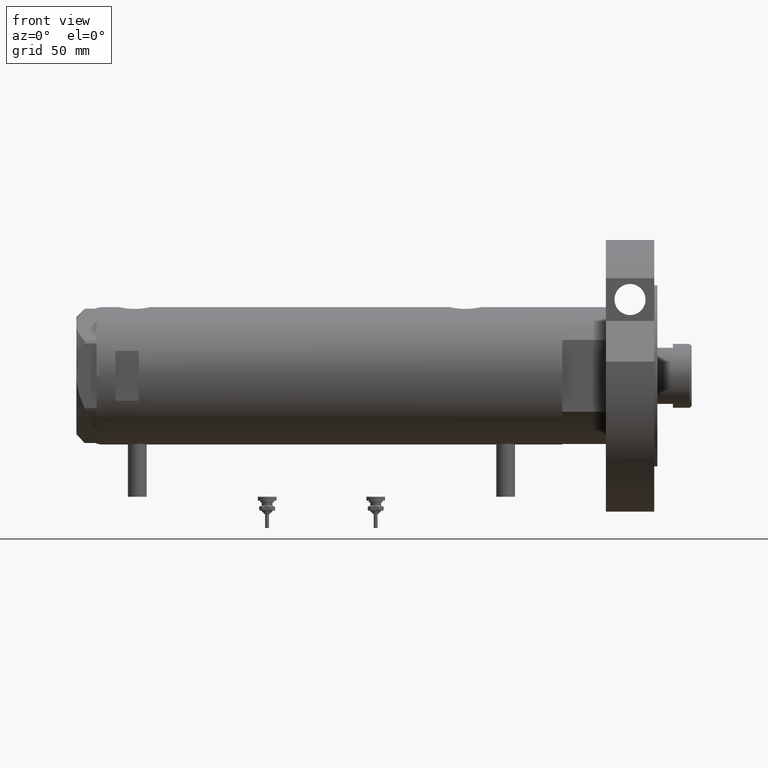
[diagram: clean part render]
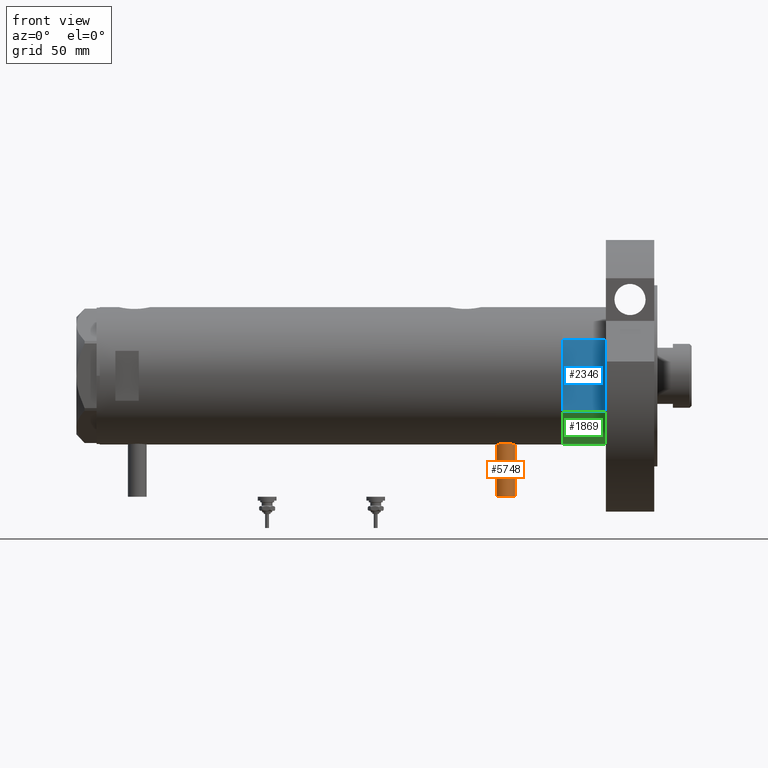
[diagram: same view with three faces highlighted in distinct colors, each labeled with its STEP entity id]
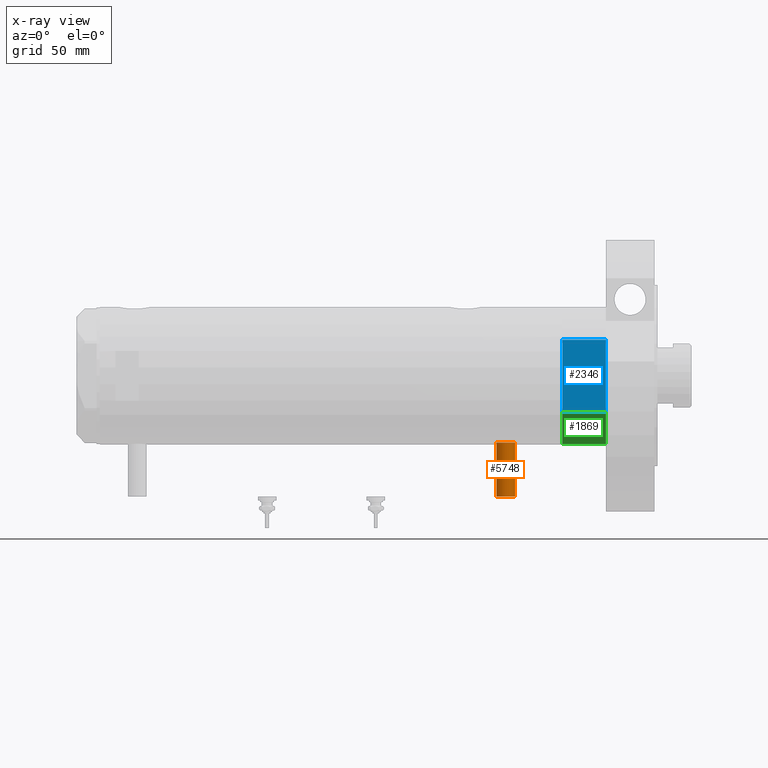
[diagram: x-ray of the same camera — body ghosted, the three highlighted faces saturated]
A machine part, front view with three faces highlighted in distinct colors.
The next image is the same camera in x-ray (body ghosted, the three faces saturated) — at least one of them is partly hidden behind the body in this view.
Their STEP definitions:

[orange] entity #5748 — the highlighted cylindrical surface (edge-blend (fillet) strip) has radius 6 mm, axis along (0, 0, 1).
#614 = DIRECTION ( 'NONE',  ( 1.000000000000000000, -0.000000000000000000, -0.000000000000000000 ) ) ;
#811 = CARTESIAN_POINT ( 'NONE',  ( -42.79999999999999716, 7.347880794884119736E-16, -105.8999999999999915 ) ) ;
#967 = CIRCLE ( 'NONE', #2430, 6.000000000000005329 ) ;
#1278 = DIRECTION ( 'NONE',  ( -1.000000000000000000, 0.000000000000000000, 0.000000000000000000 ) ) ;
#1591 = DIRECTION ( 'NONE',  ( 1.000000000000000000, -0.000000000000000000, -0.000000000000000000 ) ) ;
#1645 = VERTEX_POINT ( 'NONE', #811 ) ;
#2273 = DIRECTION ( 'NONE',  ( 0.000000000000000000, 0.000000000000000000, 1.000000000000000000 ) ) ;
#2309 = AXIS2_PLACEMENT_3D ( 'NONE', #3878, #1591, #7434 ) ;
#2351 = VERTEX_POINT ( 'NONE', #2934 ) ;
#2381 = CARTESIAN_POINT ( 'NONE',  ( -77.50000000000000000, 0.000000000000000000, -117.9000000000000057 ) ) ;
#2430 = AXIS2_PLACEMENT_3D ( 'NONE', #5751, #2858, #2273 ) ;
#2433 = EDGE_CURVE ( 'NONE', #6926, #2351, #7275, .T. ) ;
#2572 = VERTEX_POINT ( 'NONE', #3226 ) ;
#2858 = DIRECTION ( 'NONE',  ( -1.000000000000000000, 0.000000000000000000, 0.000000000000000000 ) ) ;
#2934 = CARTESIAN_POINT ( 'NONE',  ( -77.50000000000000000, 7.347880794884119736E-16, -105.8999999999999915 ) ) ;
#3162 = ORIENTED_EDGE ( 'NONE', *, *, #2433, .F. ) ;
#3226 = CARTESIAN_POINT ( 'NONE',  ( -42.79999999999999716, 0.000000000000000000, -117.9000000000000057 ) ) ;
#3684 = DIRECTION ( 'NONE',  ( 0.000000000000000000, 0.000000000000000000, 1.000000000000000000 ) ) ;
#3878 = CARTESIAN_POINT ( 'NONE',  ( -77.50000000000000000, 0.000000000000000000, -111.9000000000000057 ) ) ;
#4015 = VECTOR ( 'NONE', #614, 1000.000000000000000 ) ;
#4113 = LINE ( 'NONE', #4183, #4015 ) ;
#4183 = CARTESIAN_POINT ( 'NONE',  ( -77.50000000000000000, 7.347880794884122694E-16, -105.8999999999999915 ) ) ;
#4211 = ORIENTED_EDGE ( 'NONE', *, *, #5925, .T. ) ;
#4215 = AXIS2_PLACEMENT_3D ( 'NONE', #4216, #1278, #3684 ) ;
#4216 = CARTESIAN_POINT ( 'NONE',  ( -77.50000000000000000, 0.000000000000000000, -111.9000000000000057 ) ) ;
#4585 = CYLINDRICAL_SURFACE ( 'NONE', #2309, 6.000000000000005329 ) ;
#4618 = LINE ( 'NONE', #5345, #5218 ) ;
#4637 = ORIENTED_EDGE ( 'NONE', *, *, #5360, .T. ) ;
#5007 = EDGE_CURVE ( 'NONE', #2351, #1645, #4113, .T. ) ;
#5218 = VECTOR ( 'NONE', #6959, 1000.000000000000000 ) ;
#5345 = CARTESIAN_POINT ( 'NONE',  ( -77.50000000000000000, 0.000000000000000000, -117.9000000000000057 ) ) ;
#5360 = EDGE_CURVE ( 'NONE', #2572, #1645, #967, .T. ) ;
#5580 = FACE_OUTER_BOUND ( 'NONE', #7229, .T. ) ;
#5748 = ADVANCED_FACE ( 'NONE', ( #5580 ), #4585, .T. ) ;
#5751 = CARTESIAN_POINT ( 'NONE',  ( -42.79999999999999716, 0.000000000000000000, -111.9000000000000057 ) ) ;
#5925 = EDGE_CURVE ( 'NONE', #6926, #2572, #4618, .T. ) ;
#6926 = VERTEX_POINT ( 'NONE', #2381 ) ;
#6959 = DIRECTION ( 'NONE',  ( 1.000000000000000000, -0.000000000000000000, -0.000000000000000000 ) ) ;
#7229 = EDGE_LOOP ( 'NONE', ( #7288, #3162, #4211, #4637 ) ) ;
#7275 = CIRCLE ( 'NONE', #4215, 6.000000000000005329 ) ;
#7288 = ORIENTED_EDGE ( 'NONE', *, *, #5007, .F. ) ;
#7434 = DIRECTION ( 'NONE',  ( 0.000000000000000000, 0.000000000000000000, -1.000000000000000000 ) ) ;

[blue] entity #2346 — the highlighted planar face has unit normal (-0, 1, 0).
#62 = EDGE_CURVE ( 'NONE', #3295, #6805, #1348, .T. ) ;
#123 = VECTOR ( 'NONE', #7312, 1000.000000000000000 ) ;
#323 = ORIENTED_EDGE ( 'NONE', *, *, #62, .F. ) ;
#334 = ORIENTED_EDGE ( 'NONE', *, *, #6031, .F. ) ;
#490 = CARTESIAN_POINT ( 'NONE',  ( -23.01629857296780557, -37.50000000000000000, 0.000000000000000000 ) ) ;
#525 = VERTEX_POINT ( 'NONE', #2493 ) ;
#537 = CARTESIAN_POINT ( 'NONE',  ( 0.000000000000000000, -37.50000000000000000, 27.89999999999999858 ) ) ;
#674 = DIRECTION ( 'NONE',  ( -1.000000000000000000, -0.000000000000000000, -0.000000000000000000 ) ) ;
#1072 = ORIENTED_EDGE ( 'NONE', *, *, #2198, .T. ) ;
#1075 = DIRECTION ( 'NONE',  ( -0.000000000000000000, -0.000000000000000000, 1.000000000000000000 ) ) ;
#1162 = PLANE ( 'NONE',  #6293 ) ;
#1190 = LINE ( 'NONE', #5808, #5553 ) ;
#1348 = LINE ( 'NONE', #6466, #6639 ) ;
#1393 = LINE ( 'NONE', #2702, #2535 ) ;
#1444 = DIRECTION ( 'NONE',  ( -1.000000000000000000, -0.000000000000000000, -0.000000000000000000 ) ) ;
#1535 = EDGE_CURVE ( 'NONE', #525, #6789, #6908, .T. ) ;
#1552 = EDGE_CURVE ( 'NONE', #6789, #4835, #6948, .T. ) ;
#1553 = CARTESIAN_POINT ( 'NONE',  ( 23.01629857296780557, -37.50000000000000000, 27.89999999999999858 ) ) ;
#2163 = DIRECTION ( 'NONE',  ( -0.000000000000000000, -0.000000000000000000, 1.000000000000000000 ) ) ;
#2198 = EDGE_CURVE ( 'NONE', #4835, #5277, #4931, .T. ) ;
#2346 = ADVANCED_FACE ( 'NONE', ( #6966 ), #1162, .F. ) ;
#2487 = LINE ( 'NONE', #6119, #123 ) ;
#2493 = CARTESIAN_POINT ( 'NONE',  ( 23.01629857296780557, -37.50000000000000000, 0.000000000000000000 ) ) ;
#2535 = VECTOR ( 'NONE', #2163, 1000.000000000000000 ) ;
#2702 = CARTESIAN_POINT ( 'NONE',  ( -23.01629857296780557, -37.50000000000000000, 0.000000000000000000 ) ) ;
#3223 = EDGE_CURVE ( 'NONE', #6805, #6436, #1190, .T. ) ;
#3248 = ORIENTED_EDGE ( 'NONE', *, *, #1552, .T. ) ;
#3295 = VERTEX_POINT ( 'NONE', #5268 ) ;
#3514 = CARTESIAN_POINT ( 'NONE',  ( -23.01629857296780557, -37.50000000000000000, 27.89999999999999858 ) ) ;
#3766 = ORIENTED_EDGE ( 'NONE', *, *, #1535, .T. ) ;
#3930 = EDGE_CURVE ( 'NONE', #6436, #5277, #1393, .T. ) ;
#4552 = DIRECTION ( 'NONE',  ( -0.000000000000000000, 1.000000000000000000, 0.000000000000000000 ) ) ;
#4594 = DIRECTION ( 'NONE',  ( 0.000000000000000000, -0.000000000000000000, 1.000000000000000000 ) ) ;
#4613 = DIRECTION ( 'NONE',  ( -1.000000000000000000, -0.000000000000000000, -0.000000000000000000 ) ) ;
#4754 = CARTESIAN_POINT ( 'NONE',  ( -23.01629857296780557, -37.50000000000000000, 0.000000000000000000 ) ) ;
#4835 = VERTEX_POINT ( 'NONE', #537 ) ;
#4931 = LINE ( 'NONE', #6775, #6166 ) ;
#5268 = CARTESIAN_POINT ( 'NONE',  ( 13.91941090707505957, -37.50000000000000000, 0.000000000000000000 ) ) ;
#5277 = VERTEX_POINT ( 'NONE', #7327 ) ;
#5553 = VECTOR ( 'NONE', #4613, 1000.000000000000000 ) ;
#5808 = CARTESIAN_POINT ( 'NONE',  ( -23.01629857296780557, -37.50000000000000000, 0.000000000000000000 ) ) ;
#5921 = VECTOR ( 'NONE', #7529, 1000.000000000000000 ) ;
#6031 = EDGE_CURVE ( 'NONE', #525, #3295, #2487, .T. ) ;
#6119 = CARTESIAN_POINT ( 'NONE',  ( -23.01629857296780557, -37.50000000000000000, 0.000000000000000000 ) ) ;
#6166 = VECTOR ( 'NONE', #1444, 1000.000000000000000 ) ;
#6244 = CARTESIAN_POINT ( 'NONE',  ( -13.91941090707505957, -37.50000000000000000, 0.000000000000000000 ) ) ;
#6293 = AXIS2_PLACEMENT_3D ( 'NONE', #490, #4552, #4594 ) ;
#6412 = CARTESIAN_POINT ( 'NONE',  ( 23.01629857296780557, -37.50000000000000000, 0.000000000000000000 ) ) ;
#6436 = VERTEX_POINT ( 'NONE', #4754 ) ;
#6466 = CARTESIAN_POINT ( 'NONE',  ( -23.01629857296780557, -37.50000000000000000, 0.000000000000000000 ) ) ;
#6639 = VECTOR ( 'NONE', #674, 1000.000000000000000 ) ;
#6775 = CARTESIAN_POINT ( 'NONE',  ( -23.01629857296780557, -37.50000000000000000, 27.89999999999999858 ) ) ;
#6789 = VERTEX_POINT ( 'NONE', #1553 ) ;
#6805 = VERTEX_POINT ( 'NONE', #6244 ) ;
#6880 = VECTOR ( 'NONE', #1075, 1000.000000000000000 ) ;
#6890 = ORIENTED_EDGE ( 'NONE', *, *, #3223, .F. ) ;
#6908 = LINE ( 'NONE', #6412, #6880 ) ;
#6948 = LINE ( 'NONE', #3514, #5921 ) ;
#6966 = FACE_OUTER_BOUND ( 'NONE', #7525, .T. ) ;
#7312 = DIRECTION ( 'NONE',  ( -1.000000000000000000, -0.000000000000000000, -0.000000000000000000 ) ) ;
#7327 = CARTESIAN_POINT ( 'NONE',  ( -23.01629857296780557, -37.50000000000000000, 27.89999999999999858 ) ) ;
#7472 = ORIENTED_EDGE ( 'NONE', *, *, #3930, .F. ) ;
#7525 = EDGE_LOOP ( 'NONE', ( #3248, #1072, #7472, #6890, #323, #334, #3766 ) ) ;
#7529 = DIRECTION ( 'NONE',  ( -1.000000000000000000, -0.000000000000000000, -0.000000000000000000 ) ) ;

[green] entity #1869 — the highlighted cylindrical surface (partial cylindrical patch) has radius 44 mm, axis along (-1, -0, 0).
#191 = AXIS2_PLACEMENT_3D ( 'NONE', #2232, #3991, #3597 ) ;
#340 = LINE ( 'NONE', #2672, #6180 ) ;
#466 = DIRECTION ( 'NONE',  ( -0.000000000000000000, -0.000000000000000000, -1.000000000000000000 ) ) ;
#525 = VERTEX_POINT ( 'NONE', #2493 ) ;
#1075 = DIRECTION ( 'NONE',  ( -0.000000000000000000, -0.000000000000000000, 1.000000000000000000 ) ) ;
#1313 = EDGE_CURVE ( 'NONE', #525, #5987, #6045, .T. ) ;
#1535 = EDGE_CURVE ( 'NONE', #525, #6789, #6908, .T. ) ;
#1553 = CARTESIAN_POINT ( 'NONE',  ( 23.01629857296780557, -37.50000000000000000, 27.89999999999999858 ) ) ;
#1869 = ADVANCED_FACE ( 'NONE', ( #2189 ), #5689, .T. ) ;
#2123 = ORIENTED_EDGE ( 'NONE', *, *, #3679, .T. ) ;
#2145 = EDGE_LOOP ( 'NONE', ( #2429, #5407, #6569, #2123 ) ) ;
#2189 = FACE_OUTER_BOUND ( 'NONE', #2145, .T. ) ;
#2232 = CARTESIAN_POINT ( 'NONE',  ( 0.000000000000000000, 0.000000000000000000, 0.000000000000000000 ) ) ;
#2393 = DIRECTION ( 'NONE',  ( 1.000000000000000000, 0.000000000000000000, 0.000000000000000000 ) ) ;
#2429 = ORIENTED_EDGE ( 'NONE', *, *, #3989, .F. ) ;
#2493 = CARTESIAN_POINT ( 'NONE',  ( 23.01629857296780557, -37.50000000000000000, 0.000000000000000000 ) ) ;
#2672 = CARTESIAN_POINT ( 'NONE',  ( 23.01629857296780557, 37.50000000000000000, 0.000000000000000000 ) ) ;
#2805 = DIRECTION ( 'NONE',  ( -1.000000000000000000, 0.000000000000000000, 0.000000000000000000 ) ) ;
#2974 = CARTESIAN_POINT ( 'NONE',  ( 0.000000000000000000, 0.000000000000000000, 27.89999999999999858 ) ) ;
#3597 = DIRECTION ( 'NONE',  ( 1.000000000000000000, 0.000000000000000000, 0.000000000000000000 ) ) ;
#3679 = EDGE_CURVE ( 'NONE', #5987, #6705, #340, .T. ) ;
#3989 = EDGE_CURVE ( 'NONE', #6789, #6705, #5190, .T. ) ;
#3991 = DIRECTION ( 'NONE',  ( 0.000000000000000000, 0.000000000000000000, 1.000000000000000000 ) ) ;
#4003 = AXIS2_PLACEMENT_3D ( 'NONE', #2974, #5284, #2393 ) ;
#4064 = CARTESIAN_POINT ( 'NONE',  ( 23.01629857296780557, 37.50000000000000000, 0.000000000000000000 ) ) ;
#4340 = DIRECTION ( 'NONE',  ( -0.000000000000000000, -0.000000000000000000, 1.000000000000000000 ) ) ;
#4499 = CARTESIAN_POINT ( 'NONE',  ( 0.000000000000000000, 0.000000000000000000, 27.89999999999999858 ) ) ;
#5190 = CIRCLE ( 'NONE', #4003, 44.00000000000000000 ) ;
#5284 = DIRECTION ( 'NONE',  ( 0.000000000000000000, 0.000000000000000000, 1.000000000000000000 ) ) ;
#5407 = ORIENTED_EDGE ( 'NONE', *, *, #1535, .F. ) ;
#5689 = CYLINDRICAL_SURFACE ( 'NONE', #7020, 44.00000000000000000 ) ;
#5987 = VERTEX_POINT ( 'NONE', #4064 ) ;
#6045 = CIRCLE ( 'NONE', #191, 44.00000000000000000 ) ;
#6180 = VECTOR ( 'NONE', #4340, 1000.000000000000000 ) ;
#6412 = CARTESIAN_POINT ( 'NONE',  ( 23.01629857296780557, -37.50000000000000000, 0.000000000000000000 ) ) ;
#6569 = ORIENTED_EDGE ( 'NONE', *, *, #1313, .T. ) ;
#6705 = VERTEX_POINT ( 'NONE', #7092 ) ;
#6789 = VERTEX_POINT ( 'NONE', #1553 ) ;
#6880 = VECTOR ( 'NONE', #1075, 1000.000000000000000 ) ;
#6908 = LINE ( 'NONE', #6412, #6880 ) ;
#7020 = AXIS2_PLACEMENT_3D ( 'NONE', #4499, #466, #2805 ) ;
#7092 = CARTESIAN_POINT ( 'NONE',  ( 23.01629857296780557, 37.50000000000000000, 27.89999999999999858 ) ) ;